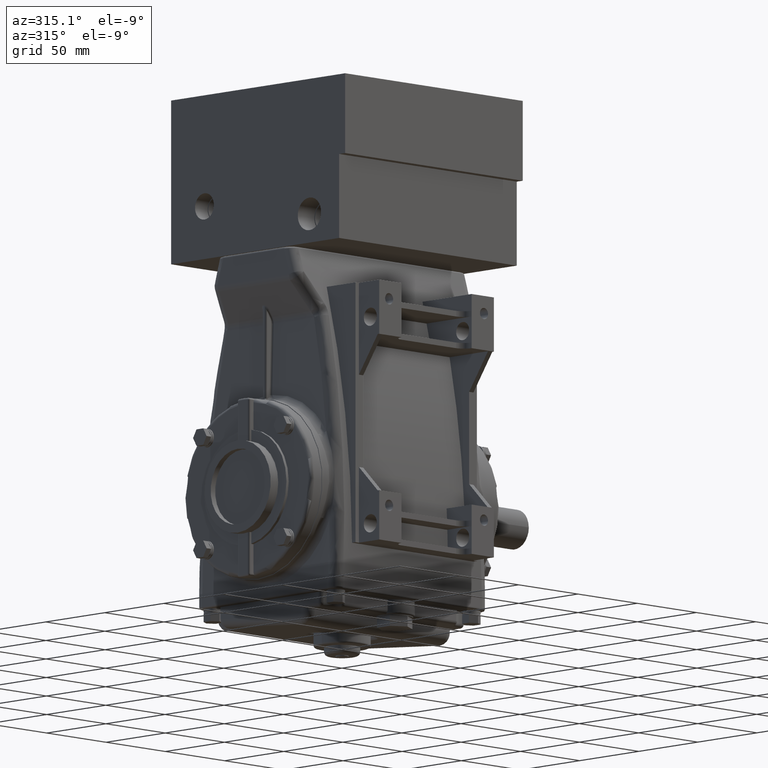
[diagram: clean part render]
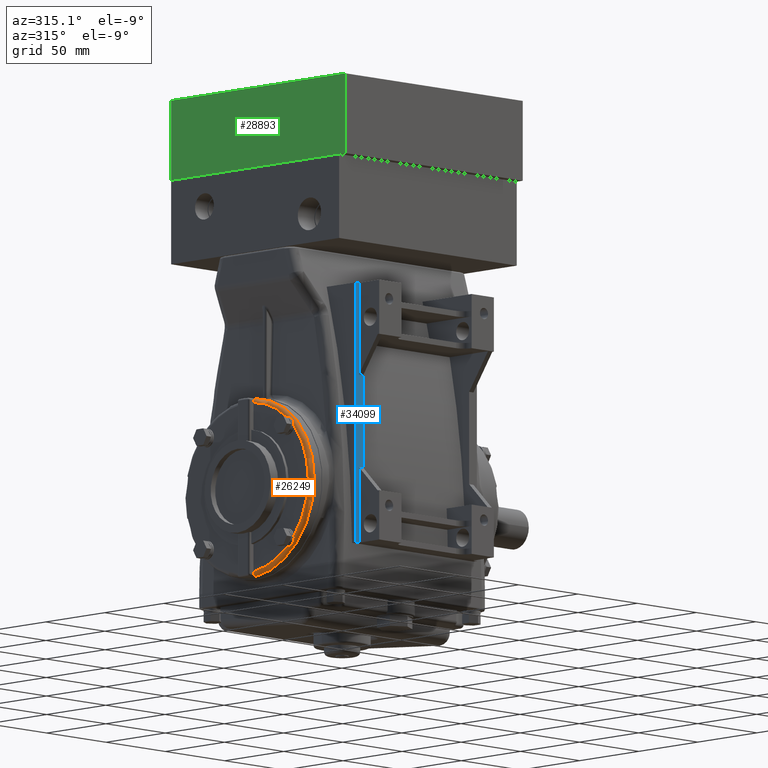
[diagram: same view with three faces highlighted in distinct colors, each labeled with its STEP entity id]
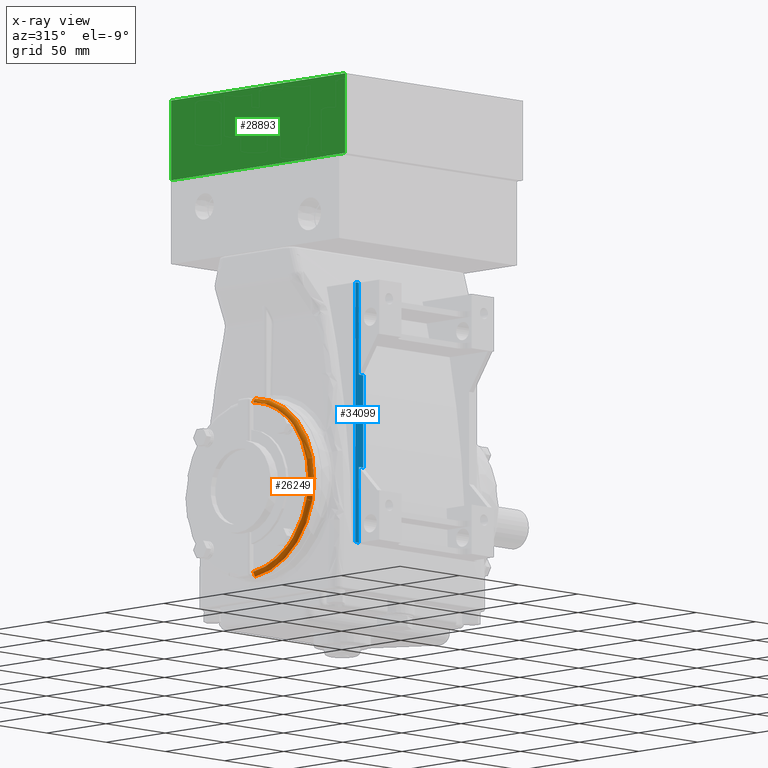
[diagram: x-ray of the same camera — body ghosted, the three highlighted faces saturated]
A machine part, auxiliary view with three faces highlighted in distinct colors.
The next image is the same camera in x-ray (body ghosted, the three faces saturated) — at least one of them is partly hidden behind the body in this view.
Their STEP definitions:

[orange] entity #26249 — the highlighted toroidal blend (fillet) surface has major radius 51.435 mm and minor (blend) radius 2.54 mm.
#1508 = CARTESIAN_POINT ( 'NONE',  ( -3.126529726524682800, -0.2000000000000002600, 2.069571211628565200 ) ) ;
#1527 = CARTESIAN_POINT ( 'NONE',  ( -3.142500000000000500, -0.2000000000000002300, 2.024786108420045100 ) ) ;
#1528 = CARTESIAN_POINT ( 'NONE',  ( -3.142500000000000500, -0.2000000000000002600, 2.015099253138663600 ) ) ;
#1535 = B_SPLINE_CURVE_WITH_KNOTS ( 'NONE', 3,
 ( #1528, #1527, #1581, #1580, #1579, #1578, #1577, #1576 ),
 .UNSPECIFIED., .F., .F.,
 ( 4, 2, 2, 4 ),
 ( 0.0000000000000000000, 0.0007276848529549610400, 0.001091527279432447400, 0.001455369705909933800 ),
 .UNSPECIFIED. ) ;
#1576 = CARTESIAN_POINT ( 'NONE',  ( -3.126529726524682800, -0.2000000000000002600, 2.069571211628565200 ) ) ;
#1577 = CARTESIAN_POINT ( 'NONE',  ( -3.129115041630340200, -0.2000000000000002600, 2.065545294889724800 ) ) ;
#1578 = CARTESIAN_POINT ( 'NONE',  ( -3.131402431167807700, -0.2000000000000002600, 2.061354250500361500 ) ) ;
#1579 = CARTESIAN_POINT ( 'NONE',  ( -3.135380750470582600, -0.2000000000000002600, 2.052641569079298700 ) ) ;
#1580 = CARTESIAN_POINT ( 'NONE',  ( -3.137080825856130200, -0.2000000000000002900, 2.048081393273867100 ) ) ;
#1581 = CARTESIAN_POINT ( 'NONE',  ( -3.141134623877690900, -0.2000000000000002300, 2.034240700164873200 ) ) ;
#2943 = B_SPLINE_CURVE_WITH_KNOTS ( 'NONE', 3,
 ( #2972, #2971, #2970, #2969, #2968, #2967, #2966, #2965, #2964, #2963, #2962, #2961 ),
 .UNSPECIFIED., .F., .F.,
 ( 4, 2, 2, 2, 2, 4 ),
 ( 6.992893892674704100E-018, 0.0007161030527250009600, 0.001432206105449995000, 0.002148309158174988900, 0.002506360684537482700, 0.002864412210899976500 ),
 .UNSPECIFIED. ) ;
#2961 = CARTESIAN_POINT ( 'NONE',  ( -3.042500000000000900, -0.1536144578313245200, -2.119440397450512900 ) ) ;
#2962 = CARTESIAN_POINT ( 'NONE',  ( -3.046321275442058300, -0.1563417107572798400, -2.119242729481132200 ) ) ;
#2963 = CARTESIAN_POINT ( 'NONE',  ( -3.050219994744704600, -0.1591076807926352400, -2.118812487301037000 ) ) ;
#2964 = CARTESIAN_POINT ( 'NONE',  ( -3.057888505306353400, -0.1644843420301285200, -2.117507178451277600 ) ) ;
#2965 = CARTESIAN_POINT ( 'NONE',  ( -3.061686788012776300, -0.1671157378699272300, -2.116633150695009100 ) ) ;
#2966 = CARTESIAN_POINT ( 'NONE',  ( -3.072994118282601900, -0.1748054979854383700, -2.113340900180324900 ) ) ;
#2967 = CARTESIAN_POINT ( 'NONE',  ( -3.080441546400836600, -0.1796855737696841900, -2.110255673262763300 ) ) ;
#2968 = CARTESIAN_POINT ( 'NONE',  ( -3.095089632464928600, -0.1885172210258852500, -2.102019360927869200 ) ) ;
#2969 = CARTESIAN_POINT ( 'NONE',  ( -3.102063760052212100, -0.1923468717228904700, -2.097010175598115200 ) ) ;
#2970 = CARTESIAN_POINT ( 'NONE',  ( -3.115316746276025400, -0.1981329370720377500, -2.084716331544455700 ) ) ;
#2971 = CARTESIAN_POINT ( 'NONE',  ( -3.121355530223145300, -0.1999999999999992600, -2.077628598310387700 ) ) ;
#2972 = CARTESIAN_POINT ( 'NONE',  ( -3.126529726524950500, -0.1999999999999992300, -2.069571211628147700 ) ) ;
#3142 = AXIS2_PLACEMENT_3D ( 'NONE', #3158, #3210, #3209 ) ;
#3143 = CIRCLE ( 'NONE', #3142, 2.024999999999999900 ) ;
#3144 = DIRECTION ( 'NONE',  ( 0.0000000000000000000, 0.0000000000000000000, 1.000000000000000000 ) ) ;
#3145 = DIRECTION ( 'NONE',  ( -1.000000000000000000, 0.0000000000000000000, 0.0000000000000000000 ) ) ;
#3146 = CARTESIAN_POINT ( 'NONE',  ( -3.126529726524682800, -0.2000000000000002600, 2.069571211628565200 ) ) ;
#3147 = CARTESIAN_POINT ( 'NONE',  ( -3.121355697339116600, -0.2000000000000002600, 2.077628338072812700 ) ) ;
#3148 = CARTESIAN_POINT ( 'NONE',  ( -3.115317151498245600, -0.1981330608052072900, 2.084715858604169200 ) ) ;
#3149 = CARTESIAN_POINT ( 'NONE',  ( -3.102064638962810600, -0.1923473086187007500, 2.097009457331155100 ) ) ;
#3150 = CARTESIAN_POINT ( 'NONE',  ( -3.095090769305961500, -0.1885178544399777300, 2.102018576980366800 ) ) ;
#3151 = CARTESIAN_POINT ( 'NONE',  ( -3.080443248174840500, -0.1796866518077902000, 2.110254861088375600 ) ) ;
#3152 = CARTESIAN_POINT ( 'NONE',  ( -3.072996043342101300, -0.1748067694972610400, 2.113340159111439600 ) ) ;
#3153 = CARTESIAN_POINT ( 'NONE',  ( -3.057920135307661700, -0.1645541933380436400, 2.117730032553959000 ) ) ;
#3154 = CARTESIAN_POINT ( 'NONE',  ( -3.050213097454781400, -0.1591193129309474700, 2.119041412259616800 ) ) ;
#3155 = CARTESIAN_POINT ( 'NONE',  ( -3.042500000000000900, -0.1536144578313255700, 2.119440397450512900 ) ) ;
#3156 = CARTESIAN_POINT ( 'NONE',  ( -3.142500000000000500, 0.0000000000000000000, 0.0000000000000000000 ) ) ;
#3157 = AXIS2_PLACEMENT_3D ( 'NONE', #3156, #3145, #3144 ) ;
#3158 = CARTESIAN_POINT ( 'NONE',  ( -3.142500000000000500, 0.0000000000000000000, 0.0000000000000000000 ) ) ;
#3159 = B_SPLINE_CURVE_WITH_KNOTS ( 'NONE', 3,
 ( #3155, #3154, #3153, #3152, #3151, #3150, #3149, #3148, #3147, #3146 ),
 .UNSPECIFIED., .F., .F.,
 ( 4, 2, 2, 2, 4 ),
 ( -1.007969163667264500E-005, 0.0007126335381881984900, 0.001435346768013069500, 0.002158059997837940700, 0.002880773227662811900 ),
 .UNSPECIFIED. ) ;
#3170 = CIRCLE ( 'NONE', #3157, 2.024999999999999900 ) ;
#3207 = FACE_OUTER_BOUND ( 'NONE', #26250, .T. ) ;
#3209 = DIRECTION ( 'NONE',  ( 0.0000000000000000000, 0.0000000000000000000, 1.000000000000000000 ) ) ;
#3210 = DIRECTION ( 'NONE',  ( -1.000000000000000000, 0.0000000000000000000, 0.0000000000000000000 ) ) ;
#3213 = DIRECTION ( 'NONE',  ( 0.0000000000000000000, 0.0000000000000000000, 1.000000000000000000 ) ) ;
#3214 = DIRECTION ( 'NONE',  ( -1.000000000000000000, 0.0000000000000000000, 0.0000000000000000000 ) ) ;
#3215 = CARTESIAN_POINT ( 'NONE',  ( -3.042500000000000900, 0.0000000000000000000, 0.0000000000000000000 ) ) ;
#3216 = AXIS2_PLACEMENT_3D ( 'NONE', #3215, #3214, #3213 ) ;
#3217 = TOROIDAL_SURFACE ( 'NONE', #3216, 2.024999999999999900, 0.1000000000000000100 ) ;
#11333 = VERTEX_POINT ( 'NONE', #34832 ) ;
#15800 = CARTESIAN_POINT ( 'NONE',  ( -3.135702261035868700, -0.1999999999999992600, -2.052754080377907200 ) ) ;
#15801 = CARTESIAN_POINT ( 'NONE',  ( -3.131741009106514500, -0.1999999999999992300, -2.061456073272184100 ) ) ;
#15802 = CARTESIAN_POINT ( 'NONE',  ( -3.126529726524950500, -0.1999999999999992300, -2.069571211628147700 ) ) ;
#15813 = B_SPLINE_CURVE_WITH_KNOTS ( 'NONE', 3,
 ( #15802, #15801, #15800, #15903, #15902, #15900 ),
 .UNSPECIFIED., .F., .F.,
 ( 4, 2, 4 ),
 ( 0.002525784394391925500, 0.003251512269391253900, 0.003977240144390581900 ),
 .UNSPECIFIED. ) ;
#15816 = CARTESIAN_POINT ( 'NONE',  ( -3.126529726524950500, -0.1999999999999992300, -2.069571211628147700 ) ) ;
#15900 = CARTESIAN_POINT ( 'NONE',  ( -3.142500000000000500, -0.1999999999999992600, -2.015099253138663600 ) ) ;
#15902 = CARTESIAN_POINT ( 'NONE',  ( -3.142500000000001400, -0.1999999999999992600, -2.024759339064935200 ) ) ;
#15903 = CARTESIAN_POINT ( 'NONE',  ( -3.141105432618124000, -0.1999999999999992100, -2.034374093770701100 ) ) ;
#24349 = VERTEX_POINT ( 'NONE', #35586 ) ;
#25230 = VERTEX_POINT ( 'NONE', #15816 ) ;
#25231 = EDGE_CURVE ( 'NONE', #25230, #32666, #15813, .T. ) ;
#26221 = ORIENTED_EDGE ( 'NONE', *, *, #32585, .F. ) ;
#26232 = ORIENTED_EDGE ( 'NONE', *, *, #32739, .F. ) ;
#26233 = ORIENTED_EDGE ( 'NONE', *, *, #26234, .T. ) ;
#26234 = EDGE_CURVE ( 'NONE', #32737, #35787, #3159, .T. ) ;
#26235 = ORIENTED_EDGE ( 'NONE', *, *, #35813, .F. ) ;
#26236 = ORIENTED_EDGE ( 'NONE', *, *, #32601, .F. ) ;
#26237 = ORIENTED_EDGE ( 'NONE', *, *, #26238, .F. ) ;
#26238 = EDGE_CURVE ( 'NONE', #32596, #24349, #3170, .T. ) ;
#26239 = ORIENTED_EDGE ( 'NONE', *, *, #32595, .F. ) ;
#26240 = ORIENTED_EDGE ( 'NONE', *, *, #26241, .F. ) ;
#26241 = EDGE_CURVE ( 'NONE', #11333, #32593, #3143, .T. ) ;
#26249 = ADVANCED_FACE ( 'NONE', ( #3207 ), #3217, .T. ) ;
#26250 = EDGE_LOOP ( 'NONE', ( #26251, #26252, #26232, #26233, #26235, #26236, #26237, #26239, #26240, #26221 ) ) ;
#26251 = ORIENTED_EDGE ( 'NONE', *, *, #25231, .F. ) ;
#26252 = ORIENTED_EDGE ( 'NONE', *, *, #26253, .T. ) ;
#26253 = EDGE_CURVE ( 'NONE', #25230, #32740, #2943, .T. ) ;
#32585 = EDGE_CURVE ( 'NONE', #32666, #11333, #36182, .T. ) ;
#32593 = VERTEX_POINT ( 'NONE', #36248 ) ;
#32595 = EDGE_CURVE ( 'NONE', #32593, #32596, #36247, .T. ) ;
#32596 = VERTEX_POINT ( 'NONE', #36242 ) ;
#32601 = EDGE_CURVE ( 'NONE', #24349, #32602, #36236, .T. ) ;
#32602 = VERTEX_POINT ( 'NONE', #36231 ) ;
#32666 = VERTEX_POINT ( 'NONE', #36509 ) ;
#32737 = VERTEX_POINT ( 'NONE', #36787 ) ;
#32739 = EDGE_CURVE ( 'NONE', #32737, #32740, #36785, .T. ) ;
#32740 = VERTEX_POINT ( 'NONE', #36786 ) ;
#34832 = CARTESIAN_POINT ( 'NONE',  ( -3.142500000000000500, -1.299367027464421100, -1.553148520888544300 ) ) ;
#35586 = CARTESIAN_POINT ( 'NONE',  ( -3.142500000000000500, -1.299367027464431800, 1.553148520888535800 ) ) ;
#35787 = VERTEX_POINT ( 'NONE', #1508 ) ;
#35813 = EDGE_CURVE ( 'NONE', #32602, #35787, #1535, .T. ) ;
#36178 = DIRECTION ( 'NONE',  ( 0.0000000000000000000, 0.0000000000000000000, 1.000000000000000000 ) ) ;
#36179 = DIRECTION ( 'NONE',  ( -1.000000000000000000, 0.0000000000000000000, 0.0000000000000000000 ) ) ;
#36180 = CARTESIAN_POINT ( 'NONE',  ( -3.142500000000000500, 0.0000000000000000000, 0.0000000000000000000 ) ) ;
#36181 = AXIS2_PLACEMENT_3D ( 'NONE', #36180, #36179, #36178 ) ;
#36182 = CIRCLE ( 'NONE', #36181, 2.024999999999999900 ) ;
#36231 = CARTESIAN_POINT ( 'NONE',  ( -3.142500000000000500, -0.2000000000000002600, 2.015099253138663600 ) ) ;
#36232 = DIRECTION ( 'NONE',  ( 0.0000000000000000000, 0.0000000000000000000, 1.000000000000000000 ) ) ;
#36233 = DIRECTION ( 'NONE',  ( -1.000000000000000000, 0.0000000000000000000, 0.0000000000000000000 ) ) ;
#36234 = CARTESIAN_POINT ( 'NONE',  ( -3.142500000000000500, 0.0000000000000000000, 0.0000000000000000000 ) ) ;
#36235 = AXIS2_PLACEMENT_3D ( 'NONE', #36234, #36233, #36232 ) ;
#36236 = CIRCLE ( 'NONE', #36235, 2.024999999999999900 ) ;
#36242 = CARTESIAN_POINT ( 'NONE',  ( -3.142500000000000500, -1.553148520888540100, 1.299367027464426700 ) ) ;
#36243 = DIRECTION ( 'NONE',  ( 0.0000000000000000000, 0.0000000000000000000, 1.000000000000000000 ) ) ;
#36244 = DIRECTION ( 'NONE',  ( -1.000000000000000000, 0.0000000000000000000, 0.0000000000000000000 ) ) ;
#36245 = CARTESIAN_POINT ( 'NONE',  ( -3.142500000000000500, 0.0000000000000000000, 0.0000000000000000000 ) ) ;
#36246 = AXIS2_PLACEMENT_3D ( 'NONE', #36245, #36244, #36243 ) ;
#36247 = CIRCLE ( 'NONE', #36246, 2.024999999999999900 ) ;
#36248 = CARTESIAN_POINT ( 'NONE',  ( -3.142500000000000500, -1.553148520888531200, -1.299367027464436900 ) ) ;
#36509 = CARTESIAN_POINT ( 'NONE',  ( -3.142500000000000500, -0.1999999999999992600, -2.015099253138663600 ) ) ;
#36781 = DIRECTION ( 'NONE',  ( 0.0000000000000000000, 0.0000000000000000000, 1.000000000000000000 ) ) ;
#36782 = DIRECTION ( 'NONE',  ( 1.000000000000000000, -0.0000000000000000000, -0.0000000000000000000 ) ) ;
#36783 = CARTESIAN_POINT ( 'NONE',  ( -3.042500000000000900, 0.0000000000000000000, 0.0000000000000000000 ) ) ;
#36784 = AXIS2_PLACEMENT_3D ( 'NONE', #36783, #36782, #36781 ) ;
#36785 = CIRCLE ( 'NONE', #36784, 2.125000000000000000 ) ;
#36786 = CARTESIAN_POINT ( 'NONE',  ( -3.042500000000000900, -0.1536144578313245200, -2.119440397450512900 ) ) ;
#36787 = CARTESIAN_POINT ( 'NONE',  ( -3.042500000000000900, -0.1536144578313255700, 2.119440397450512900 ) ) ;

[blue] entity #34099 — the highlighted planar face has unit normal (0, -1, 0).
#1260 = DIRECTION ( 'NONE',  ( 1.000000000000000000, -0.0000000000000000000, -0.0000000000000000000 ) ) ;
#1261 = VECTOR ( 'NONE', #1260, 39.37007874015748100 ) ;
#1262 = CARTESIAN_POINT ( 'NONE',  ( -2.965801945832718700, -2.469606299212598900, 2.563050677209799800 ) ) ;
#1263 = LINE ( 'NONE', #1262, #1261 ) ;
#1287 = CARTESIAN_POINT ( 'NONE',  ( -1.902499999999999000, -2.469606299212598900, 0.3630506772097998300 ) ) ;
#1462 = FACE_OUTER_BOUND ( 'NONE', #34100, .T. ) ;
#1463 = DIRECTION ( 'NONE',  ( -1.323997412115151900E-016, -0.0000000000000000000, 1.000000000000000000 ) ) ;
#1464 = VECTOR ( 'NONE', #1463, 39.37007874015748100 ) ;
#1465 = CARTESIAN_POINT ( 'NONE',  ( -1.902499999999999400, -2.469606299212598900, 4.749999999999999100 ) ) ;
#1466 = LINE ( 'NONE', #1465, #1464 ) ;
#1490 = DIRECTION ( 'NONE',  ( 1.000000000000000000, -0.0000000000000000000, -0.0000000000000000000 ) ) ;
#1491 = VECTOR ( 'NONE', #1490, 39.37007874015748100 ) ;
#1492 = CARTESIAN_POINT ( 'NONE',  ( -2.965801945832718700, -2.469606299212598900, 0.3630506772097998300 ) ) ;
#1493 = LINE ( 'NONE', #1492, #1491 ) ;
#1495 = DIRECTION ( 'NONE',  ( 0.0000000000000000000, -0.0000000000000000000, -1.000000000000000000 ) ) ;
#1496 = DIRECTION ( 'NONE',  ( 0.0000000000000000000, -1.000000000000000000, 0.0000000000000000000 ) ) ;
#1497 = CARTESIAN_POINT ( 'NONE',  ( -2.015000000000001900, -2.469606299212598900, -1.439999999999999900 ) ) ;
#1498 = AXIS2_PLACEMENT_3D ( 'NONE', #1497, #1496, #1495 ) ;
#1499 = PLANE ( 'NONE',  #1498 ) ;
#33180 = VERTEX_POINT ( 'NONE', #38389 ) ;
#33243 = VERTEX_POINT ( 'NONE', #38569 ) ;
#33245 = EDGE_CURVE ( 'NONE', #33180, #33243, #38567, .T. ) ;
#33300 = EDGE_CURVE ( 'NONE', #33327, #33301, #38958, .T. ) ;
#33301 = VERTEX_POINT ( 'NONE', #38953 ) ;
#33327 = VERTEX_POINT ( 'NONE', #39069 ) ;
#33486 = VERTEX_POINT ( 'NONE', #39542 ) ;
#33488 = EDGE_CURVE ( 'NONE', #33489, #33486, #39541, .T. ) ;
#33489 = VERTEX_POINT ( 'NONE', #39537 ) ;
#33519 = VERTEX_POINT ( 'NONE', #39586 ) ;
#33521 = EDGE_CURVE ( 'NONE', #33301, #33519, #39640, .T. ) ;
#33580 = ORIENTED_EDGE ( 'NONE', *, *, #33245, .T. ) ;
#33625 = EDGE_CURVE ( 'NONE', #33243, #33327, #39951, .T. ) ;
#34033 = EDGE_CURVE ( 'NONE', #33180, #33486, #1263, .T. ) ;
#34045 = VERTEX_POINT ( 'NONE', #1287 ) ;
#34084 = ORIENTED_EDGE ( 'NONE', *, *, #33625, .T. ) ;
#34085 = ORIENTED_EDGE ( 'NONE', *, *, #33300, .T. ) ;
#34086 = ORIENTED_EDGE ( 'NONE', *, *, #33521, .T. ) ;
#34096 = EDGE_CURVE ( 'NONE', #33519, #34045, #1466, .T. ) ;
#34099 = ADVANCED_FACE ( 'NONE', ( #1462 ), #1499, .T. ) ;
#34100 = EDGE_LOOP ( 'NONE', ( #34101, #34102, #34104, #34105, #33580, #34084, #34085, #34086 ) ) ;
#34101 = ORIENTED_EDGE ( 'NONE', *, *, #34096, .T. ) ;
#34102 = ORIENTED_EDGE ( 'NONE', *, *, #34103, .T. ) ;
#34103 = EDGE_CURVE ( 'NONE', #34045, #33489, #1493, .T. ) ;
#34104 = ORIENTED_EDGE ( 'NONE', *, *, #33488, .T. ) ;
#34105 = ORIENTED_EDGE ( 'NONE', *, *, #34033, .F. ) ;
#38389 = CARTESIAN_POINT ( 'NONE',  ( -1.902499999999999000, -2.469606299212598900, 2.563050677209799800 ) ) ;
#38564 = DIRECTION ( 'NONE',  ( -1.323997412115151900E-016, -0.0000000000000000000, 1.000000000000000000 ) ) ;
#38565 = VECTOR ( 'NONE', #38564, 39.37007874015748100 ) ;
#38566 = CARTESIAN_POINT ( 'NONE',  ( -1.902499999999999400, -2.469606299212598900, 4.749999999999999100 ) ) ;
#38567 = LINE ( 'NONE', #38566, #38565 ) ;
#38569 = CARTESIAN_POINT ( 'NONE',  ( -1.902499999999999400, -2.469606299212598900, 4.749999999999999100 ) ) ;
#38953 = CARTESIAN_POINT ( 'NONE',  ( -2.015000000000001900, -2.469606299212598900, -1.439999999999999900 ) ) ;
#38954 = DIRECTION ( 'NONE',  ( -1.765329882820202300E-016, -0.0000000000000000000, -1.000000000000000000 ) ) ;
#38955 = VECTOR ( 'NONE', #38954, 39.37007874015748100 ) ;
#38957 = CARTESIAN_POINT ( 'NONE',  ( -2.015000000000001900, -2.469606299212598900, -1.439999999999999900 ) ) ;
#38958 = LINE ( 'NONE', #38957, #38955 ) ;
#39069 = CARTESIAN_POINT ( 'NONE',  ( -2.015000000000000600, -2.469606299212598900, 4.750000000000000000 ) ) ;
#39537 = CARTESIAN_POINT ( 'NONE',  ( -1.760000000000001800, -2.469606299212598900, 0.3630506772097998300 ) ) ;
#39538 = DIRECTION ( 'NONE',  ( 2.200146035165849700E-016, -0.0000000000000000000, 1.000000000000000000 ) ) ;
#39539 = VECTOR ( 'NONE', #39538, 39.37007874015748100 ) ;
#39540 = CARTESIAN_POINT ( 'NONE',  ( -1.760000000000000700, -2.469606299212598900, 3.459999999999999500 ) ) ;
#39541 = LINE ( 'NONE', #39540, #39539 ) ;
#39542 = CARTESIAN_POINT ( 'NONE',  ( -1.760000000000001100, -2.469606299212598900, 2.563050677209799800 ) ) ;
#39586 = CARTESIAN_POINT ( 'NONE',  ( -1.902499999999998500, -2.469606299212598900, -1.440000000000000400 ) ) ;
#39637 = DIRECTION ( 'NONE',  ( 1.000000000000000000, -0.0000000000000000000, -4.856618655402995000E-015 ) ) ;
#39638 = VECTOR ( 'NONE', #39637, 39.37007874015748100 ) ;
#39639 = CARTESIAN_POINT ( 'NONE',  ( -1.902499999999998500, -2.469606299212598900, -1.440000000000000400 ) ) ;
#39640 = LINE ( 'NONE', #39639, #39638 ) ;
#39948 = DIRECTION ( 'NONE',  ( -1.000000000000000000, -0.0000000000000000000, 1.456985596620923300E-014 ) ) ;
#39949 = VECTOR ( 'NONE', #39948, 39.37007874015748100 ) ;
#39950 = CARTESIAN_POINT ( 'NONE',  ( -2.015000000000000600, -2.469606299212598900, 4.750000000000000000 ) ) ;
#39951 = LINE ( 'NONE', #39950, #39949 ) ;

[green] entity #28893 — the highlighted planar face has unit normal (-1, -0, 0).
#8602 = CARTESIAN_POINT ( 'NONE',  ( 2.000000000000002700, -2.999999999999996900, 2.950000000000001100 ) ) ;
#9107 = CARTESIAN_POINT ( 'NONE',  ( 2.000000000000002700, 2.800000000000002900, 2.950000000000001100 ) ) ;
#9118 = DIRECTION ( 'NONE',  ( 2.775557561562892600E-017, 1.000000000000000000, -9.941970037918651400E-033 ) ) ;
#9119 = VECTOR ( 'NONE', #9118, 39.37007874015748100 ) ;
#9120 = CARTESIAN_POINT ( 'NONE',  ( 2.000000000000000400, -2.799999999999996700, 2.950000000000001100 ) ) ;
#9121 = LINE ( 'NONE', #9120, #9119 ) ;
#9122 = CARTESIAN_POINT ( 'NONE',  ( 2.000000000000000400, -2.799999999999996700, 2.950000000000001100 ) ) ;
#9433 = DIRECTION ( 'NONE',  ( 1.135469068152812100E-016, -1.000000000000000000, 1.863616765056940400E-031 ) ) ;
#9434 = VECTOR ( 'NONE', #9433, 39.37007874015748100 ) ;
#9435 = CARTESIAN_POINT ( 'NONE',  ( 2.000000000000002700, 2.800000000000002900, 2.950000000000001100 ) ) ;
#9436 = LINE ( 'NONE', #9435, #9434 ) ;
#9437 = DIRECTION ( 'NONE',  ( 1.000000000000000000, 2.775557561562887300E-017, 0.0000000000000000000 ) ) ;
#9438 = DIRECTION ( 'NONE',  ( 3.421138828918005500E-049, -1.232595164407830900E-032, 1.000000000000000000 ) ) ;
#9439 = CARTESIAN_POINT ( 'NONE',  ( 2.185478394931410600E-015, -2.799999999999996700, 2.950000000000001100 ) ) ;
#9440 = AXIS2_PLACEMENT_3D ( 'NONE', #9439, #9438, #9437 ) ;
#9441 = PLANE ( 'NONE',  #9440 ) ;
#9442 = FACE_OUTER_BOUND ( 'NONE', #28894, .T. ) ;
#9448 = CARTESIAN_POINT ( 'NONE',  ( 3.900000000000001700, 2.800000000000000300, 2.949999999999999700 ) ) ;
#9449 = DIRECTION ( 'NONE',  ( -1.000000000000000000, -2.775557561562892600E-017, 0.0000000000000000000 ) ) ;
#9450 = VECTOR ( 'NONE', #9449, 39.37007874015748100 ) ;
#9451 = CARTESIAN_POINT ( 'NONE',  ( 0.0000000000000000000, 2.799999999999999800, 2.949999999999999700 ) ) ;
#9452 = LINE ( 'NONE', #9451, #9450 ) ;
#9534 = DIRECTION ( 'NONE',  ( 2.775557561562892600E-017, 1.000000000000000000, -9.941970037918651400E-033 ) ) ;
#9535 = VECTOR ( 'NONE', #9534, 39.37007874015748100 ) ;
#9536 = CARTESIAN_POINT ( 'NONE',  ( 3.900000000000001700, 2.800000000000000300, 2.949999999999999700 ) ) ;
#9537 = LINE ( 'NONE', #9536, #9535 ) ;
#9538 = CARTESIAN_POINT ( 'NONE',  ( 3.900000000000001700, -2.999999999999996900, 2.950000000000001100 ) ) ;
#9539 = DIRECTION ( 'NONE',  ( 1.000000000000000000, 2.775557561562887300E-017, 0.0000000000000000000 ) ) ;
#9541 = VECTOR ( 'NONE', #9539, 39.37007874015748100 ) ;
#9542 = CARTESIAN_POINT ( 'NONE',  ( 2.000000000000002700, -2.999999999999996900, 2.950000000000001100 ) ) ;
#9543 = LINE ( 'NONE', #9542, #9541 ) ;
#28464 = VERTEX_POINT ( 'NONE', #8602 ) ;
#28718 = VERTEX_POINT ( 'NONE', #9122 ) ;
#28720 = EDGE_CURVE ( 'NONE', #28718, #28725, #9121, .T. ) ;
#28725 = VERTEX_POINT ( 'NONE', #9107 ) ;
#28889 = EDGE_CURVE ( 'NONE', #28890, #28725, #9452, .T. ) ;
#28890 = VERTEX_POINT ( 'NONE', #9448 ) ;
#28893 = ADVANCED_FACE ( 'NONE', ( #9442 ), #9441, .T. ) ;
#28894 = EDGE_LOOP ( 'NONE', ( #28895, #28896, #28950, #28953, #28955 ) ) ;
#28895 = ORIENTED_EDGE ( 'NONE', *, *, #28720, .F. ) ;
#28896 = ORIENTED_EDGE ( 'NONE', *, *, #28897, .T. ) ;
#28897 = EDGE_CURVE ( 'NONE', #28718, #28464, #9436, .T. ) ;
#28950 = ORIENTED_EDGE ( 'NONE', *, *, #28951, .T. ) ;
#28951 = EDGE_CURVE ( 'NONE', #28464, #28952, #9543, .T. ) ;
#28952 = VERTEX_POINT ( 'NONE', #9538 ) ;
#28953 = ORIENTED_EDGE ( 'NONE', *, *, #28954, .T. ) ;
#28954 = EDGE_CURVE ( 'NONE', #28952, #28890, #9537, .T. ) ;
#28955 = ORIENTED_EDGE ( 'NONE', *, *, #28889, .T. ) ;